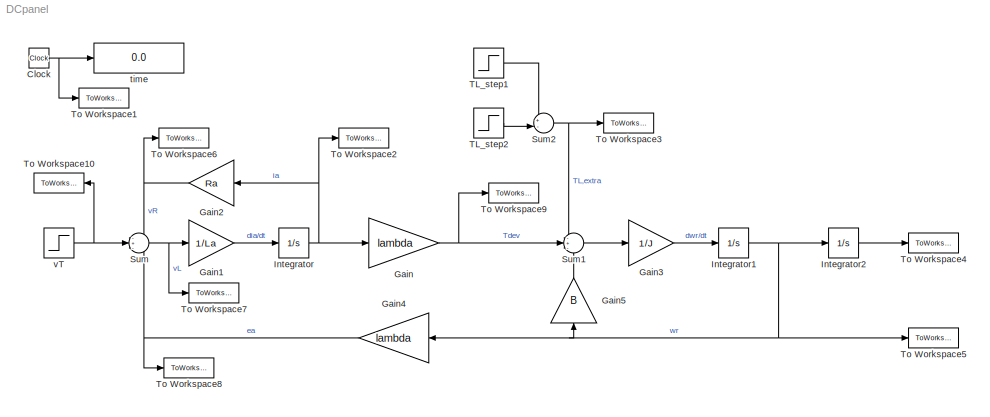
MODEL DCpanel
KIND model
BLOCK [Clock] Clock
  SID = 1
BLOCK [Gain] Gain
  Gain = lambda
  OutDataTypeStr = Inherit: Inherit via internal rule
  ParamDataTypeStr = Inherit: Inherit via internal rule
  SID = 38
  SaturateOnIntegerOverflow = off
BLOCK [Gain] Gain1
  Gain = 1/La
  OutDataTypeStr = Inherit: Inherit via internal rule
  ParamDataTypeStr = Inherit: Inherit via internal rule
  SID = 45
  SaturateOnIntegerOverflow = off
BLOCK [Gain] Gain2
  Gain = Ra
  OutDataTypeStr = Inherit: Inherit via internal rule
  ParamDataTypeStr = Inherit: Inherit via internal rule
  SID = 46
  SaturateOnIntegerOverflow = off
BLOCK [Gain] Gain3
  Gain = 1/J
  OutDataTypeStr = Inherit: Inherit via internal rule
  ParamDataTypeStr = Inherit: Inherit via internal rule
  SID = 51
  SaturateOnIntegerOverflow = off
BLOCK [Gain] Gain4
  Gain = lambda
  OutDataTypeStr = Inherit: Inherit via internal rule
  ParamDataTypeStr = Inherit: Inherit via internal rule
  SID = 55
  SaturateOnIntegerOverflow = off
BLOCK [Gain] Gain5
  Gain = B
  OutDataTypeStr = Inherit: Inherit via internal rule
  ParamDataTypeStr = Inherit: Inherit via internal rule
  SID = 57
  SaturateOnIntegerOverflow = off
BLOCK [Integrator] Integrator
  Ports = [1, 1]
  SID = 44
BLOCK [Integrator] Integrator1
  Ports = [1, 1]
  SID = 52
BLOCK [Integrator] Integrator2
  Ports = [1, 1]
  SID = 53
BLOCK [Sum] Sum
  IconShape = round
  InputSameDT = off
  Inputs = -+-
  OutDataTypeStr = Inherit: Inherit via internal rule
  Ports = [3, 1]
  SID = 40
  SaturateOnIntegerOverflow = off
BLOCK [Sum] Sum1
  IconShape = round
  InputSameDT = off
  Inputs = -+-
  OutDataTypeStr = Inherit: Inherit via internal rule
  Ports = [3, 1]
  SID = 41
  SaturateOnIntegerOverflow = off
BLOCK [Sum] Sum2
  IconShape = round
  InputSameDT = off
  Inputs = +-|
  OutDataTypeStr = Inherit: Inherit via internal rule
  Ports = [2, 1]
  SID = 48
  SaturateOnIntegerOverflow = off
BLOCK [Step] TL_step1
  After = TL_step
  SID = 16
  SampleTime = 0
  Time = TL_steptime1
BLOCK [Step] TL_step2
  After = TL_step*2
  SID = 49
  SampleTime = 0
  Time = TL_steptime2
BLOCK [ToWorkspace] To Workspace1
  MaxDataPoints = inf
  Ports = [1]
  SID = 8
  SampleTime = -1
  VariableName = time
BLOCK [ToWorkspace] To Workspace10
  MaxDataPoints = inf
  Ports = [1]
  SID = 62
  SampleTime = -1
  VariableName = vT
BLOCK [ToWorkspace] To Workspace2
  MaxDataPoints = inf
  Ports = [1]
  SID = 47
  SampleTime = -1
  VariableName = ia
BLOCK [ToWorkspace] To Workspace3
  MaxDataPoints = inf
  Ports = [1]
  SID = 50
  SampleTime = -1
  VariableName = TLextra
BLOCK [ToWorkspace] To Workspace4
  MaxDataPoints = inf
  Ports = [1]
  SID = 54
  SampleTime = -1
  VariableName = thetar
BLOCK [ToWorkspace] To Workspace5
  MaxDataPoints = inf
  Ports = [1]
  SID = 56
  SampleTime = -1
  VariableName = wr
BLOCK [ToWorkspace] To Workspace6
  MaxDataPoints = inf
  Ports = [1]
  SID = 58
  SampleTime = -1
  VariableName = vR
BLOCK [ToWorkspace] To Workspace7
  MaxDataPoints = inf
  Ports = [1]
  SID = 59
  SampleTime = -1
  VariableName = vL
BLOCK [ToWorkspace] To Workspace8
  MaxDataPoints = inf
  Ports = [1]
  SID = 60
  SampleTime = -1
  VariableName = ea
BLOCK [ToWorkspace] To Workspace9
  MaxDataPoints = inf
  Ports = [1]
  SID = 61
  SampleTime = -1
  VariableName = Tdev
BLOCK [Display] time
  Decimation = 1
  Ports = [1]
  SID = 10
BLOCK [Step] vT
  After = vT_step
  SID = 34
  SampleTime = 0
  Time = vT_steptime
NET Clock:1 -> To Workspace1:1, time:1
LINE Gain1:1 -> Integrator:1
NET Gain2:1 -> Sum:1, To Workspace6:1
LINE Gain3:1 -> Integrator1:1
NET Gain4:1 -> Sum:3, To Workspace8:1
LINE Gain5:1 -> Sum1:3
NET Gain:1 -> Sum1:2, To Workspace9:1
NET Integrator1:1 -> Gain4:1, Gain5:1, Integrator2:1, To Workspace5:1
LINE Integrator2:1 -> To Workspace4:1
NET Integrator:1 -> Gain2:1, Gain:1, To Workspace2:1
LINE Sum1:1 -> Gain3:1
NET Sum2:1 -> Sum1:1, To Workspace3:1
NET Sum:1 -> Gain1:1, To Workspace7:1
LINE TL_step1:1 -> Sum2:1
LINE TL_step2:1 -> Sum2:2
NET vT:1 -> Sum:2, To Workspace10:1
note: NET lines group one-source signal fan-out (src -> all destinations, sorted); 1:1 wires keep LINE
